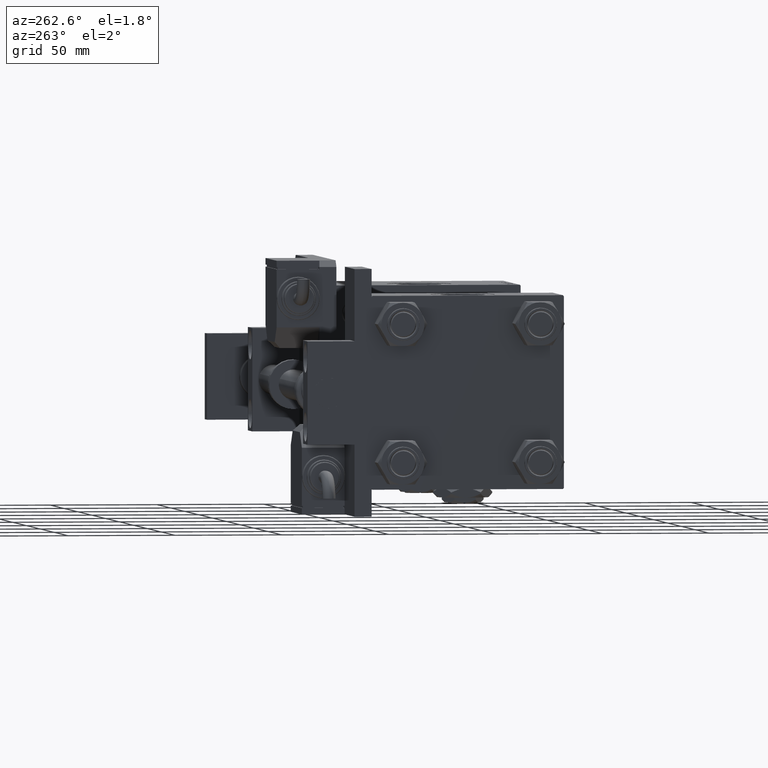
[diagram: clean part render]
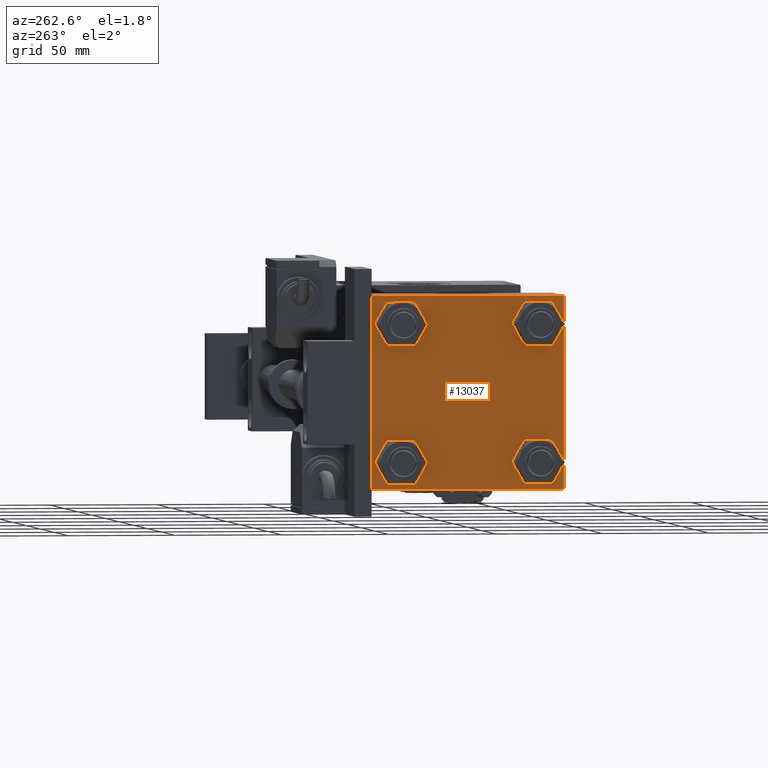
[diagram: same view with one face highlighted and labeled with its STEP entity id]
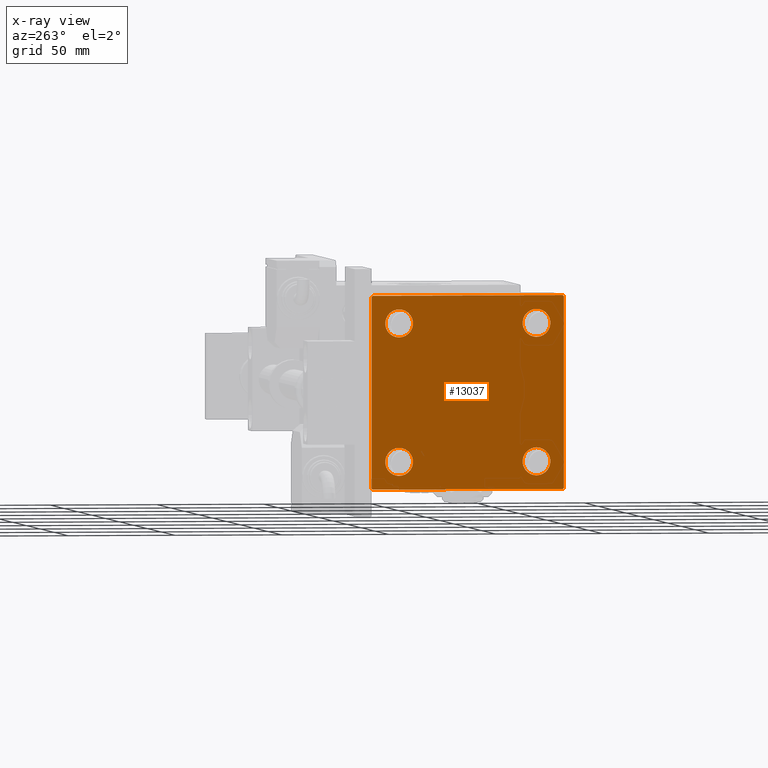
[diagram: x-ray of the same camera — body ghosted, the highlighted face saturated]
A machine part, auxiliary view. The second image highlights one B-rep face of the part: STEP entity #13037.
The next image is the same camera in x-ray: the body ghosted, the highlighted face saturated — about 0% of this face is hidden behind the body in this view.
In plain terms, the highlighted planar face has unit normal (-1, 0, 0).
Its self-contained STEP definition (entity closure, byte-faithful):
#770 = CARTESIAN_POINT ( 'NONE',  ( 0.000000000000000000, 32.14999999999999147, -32.14999999999999858 ) ) ;
#827 = VERTEX_POINT ( 'NONE', #3104 ) ;
#874 = DIRECTION ( 'NONE',  ( 0.000000000000000000, 0.000000000000000000, 1.000000000000000000 ) ) ;
#1553 = DIRECTION ( 'NONE',  ( 0.000000000000000000, 0.000000000000000000, 1.000000000000000000 ) ) ;
#1712 = CARTESIAN_POINT ( 'NONE',  ( 0.000000000000000000, 45.00000000000000000, -44.99999999999999289 ) ) ;
#1728 = CIRCLE ( 'NONE', #11109, 6.499999999999977796 ) ;
#1773 = DIRECTION ( 'NONE',  ( 1.000000000000000000, -0.000000000000000000, 0.000000000000000000 ) ) ;
#2805 = CARTESIAN_POINT ( 'NONE',  ( 0.000000000000000000, 45.00000000000000000, 44.49999999999999289 ) ) ;
#2929 = FACE_BOUND ( 'NONE', #13698, .T. ) ;
#3104 = CARTESIAN_POINT ( 'NONE',  ( 0.000000000000000000, 32.14999999999999147, -25.64999999999997726 ) ) ;
#3209 = CARTESIAN_POINT ( 'NONE',  ( 0.000000000000000000, -44.49999999999997158, 44.99999999999998579 ) ) ;
#3447 = EDGE_CURVE ( 'NONE', #42028, #19381, #28579, .T. ) ;
#3480 = CIRCLE ( 'NONE', #32568, 6.500000000000019540 ) ;
#3890 = ORIENTED_EDGE ( 'NONE', *, *, #6220, .F. ) ;
#3905 = DIRECTION ( 'NONE',  ( 0.000000000000000000, 0.000000000000000000, -1.000000000000000000 ) ) ;
#4324 = DIRECTION ( 'NONE',  ( 0.000000000000000000, 0.000000000000000000, -1.000000000000000000 ) ) ;
#4494 = ORIENTED_EDGE ( 'NONE', *, *, #11536, .T. ) ;
#4807 = LINE ( 'NONE', #13328, #6561 ) ;
#5023 = EDGE_CURVE ( 'NONE', #19381, #42028, #48304, .T. ) ;
#5510 = EDGE_CURVE ( 'NONE', #45424, #16648, #21513, .T. ) ;
#5886 = CARTESIAN_POINT ( 'NONE',  ( 0.000000000000000000, 44.74999999999936762, 44.75000000000061107 ) ) ;
#6039 = CARTESIAN_POINT ( 'NONE',  ( 0.000000000000000000, -44.49999999999994316, -45.00000000000000000 ) ) ;
#6220 = EDGE_CURVE ( 'NONE', #13718, #38865, #49158, .T. ) ;
#6375 = ORIENTED_EDGE ( 'NONE', *, *, #55957, .T. ) ;
#6561 = VECTOR ( 'NONE', #22416, 1000.000000000000114 ) ;
#6764 = VERTEX_POINT ( 'NONE', #50120 ) ;
#6824 = VERTEX_POINT ( 'NONE', #10210 ) ;
#6851 = ORIENTED_EDGE ( 'NONE', *, *, #3447, .T. ) ;
#6941 = CARTESIAN_POINT ( 'NONE',  ( 0.000000000000000000, 32.14999999999999147, 32.14999999999999858 ) ) ;
#7042 = DIRECTION ( 'NONE',  ( -1.000000000000000000, 0.000000000000000000, -0.000000000000000000 ) ) ;
#7421 = VECTOR ( 'NONE', #28393, 1000.000000000000000 ) ;
#8058 = CARTESIAN_POINT ( 'NONE',  ( 0.000000000000000000, 32.14999999999999147, -38.65000000000001990 ) ) ;
#8157 = DIRECTION ( 'NONE',  ( 0.000000000000000000, 0.000000000000000000, 1.000000000000000000 ) ) ;
#8202 = VERTEX_POINT ( 'NONE', #8058 ) ;
#8695 = EDGE_CURVE ( 'NONE', #827, #8202, #3480, .T. ) ;
#8965 = ORIENTED_EDGE ( 'NONE', *, *, #57461, .T. ) ;
#9675 = CARTESIAN_POINT ( 'NONE',  ( 0.000000000000000000, -32.14999999999997726, 32.15000000000000568 ) ) ;
#9925 = VECTOR ( 'NONE', #3905, 1000.000000000000000 ) ;
#10042 = DIRECTION ( 'NONE',  ( 1.000000000000000000, -0.000000000000000000, 0.000000000000000000 ) ) ;
#10210 = CARTESIAN_POINT ( 'NONE',  ( 0.000000000000000000, -32.14999999999997726, 38.64999999999999147 ) ) ;
#10450 = AXIS2_PLACEMENT_3D ( 'NONE', #770, #49468, #27163 ) ;
#10597 = VECTOR ( 'NONE', #44426, 1000.000000000000114 ) ;
#11097 = DIRECTION ( 'NONE',  ( 0.000000000000000000, -0.7071067811865672237, 0.7071067811865279218 ) ) ;
#11109 = AXIS2_PLACEMENT_3D ( 'NONE', #41766, #10042, #1553 ) ;
#11536 = EDGE_CURVE ( 'NONE', #6764, #35518, #45651, .T. ) ;
#11631 = EDGE_LOOP ( 'NONE', ( #29194, #6375 ) ) ;
#12317 = FACE_OUTER_BOUND ( 'NONE', #31764, .T. ) ;
#12990 = VERTEX_POINT ( 'NONE', #14969 ) ;
#13037 = ADVANCED_FACE ( 'NONE', ( #35184, #2929, #47537, #25236, #12317 ), #38746, .T. ) ;
#13328 = CARTESIAN_POINT ( 'NONE',  ( -0.000000000000000000, -44.74999999999999289, 44.74999999999999289 ) ) ;
#13604 = VECTOR ( 'NONE', #55181, 999.9999999999998863 ) ;
#13698 = EDGE_LOOP ( 'NONE', ( #4494, #19165 ) ) ;
#13718 = VERTEX_POINT ( 'NONE', #33903 ) ;
#13932 = ORIENTED_EDGE ( 'NONE', *, *, #8695, .T. ) ;
#14300 = ORIENTED_EDGE ( 'NONE', *, *, #20932, .T. ) ;
#14429 = VERTEX_POINT ( 'NONE', #2805 ) ;
#14524 = EDGE_CURVE ( 'NONE', #44388, #12990, #26245, .T. ) ;
#14595 = CARTESIAN_POINT ( 'NONE',  ( 0.000000000000000000, 32.14999999999999147, 38.65000000000001990 ) ) ;
#14969 = CARTESIAN_POINT ( 'NONE',  ( 0.000000000000000000, 44.50000000000000000, -44.99999999999999289 ) ) ;
#15477 = LINE ( 'NONE', #33390, #34249 ) ;
#16131 = CARTESIAN_POINT ( 'NONE',  ( 0.000000000000000000, 0.000000000000000000, 0.000000000000000000 ) ) ;
#16648 = VERTEX_POINT ( 'NONE', #46301 ) ;
#19165 = ORIENTED_EDGE ( 'NONE', *, *, #20720, .T. ) ;
#19381 = VERTEX_POINT ( 'NONE', #22289 ) ;
#19650 = EDGE_CURVE ( 'NONE', #14429, #44388, #34857, .T. ) ;
#20365 = AXIS2_PLACEMENT_3D ( 'NONE', #49218, #44526, #8157 ) ;
#20720 = EDGE_CURVE ( 'NONE', #35518, #6764, #56236, .T. ) ;
#20822 = DIRECTION ( 'NONE',  ( -0.000000000000000000, 0.000000000000000000, 1.000000000000000000 ) ) ;
#20932 = EDGE_CURVE ( 'NONE', #45424, #38865, #4807, .T. ) ;
#21382 = ORIENTED_EDGE ( 'NONE', *, *, #14524, .T. ) ;
#21513 = LINE ( 'NONE', #48509, #9925 ) ;
#22283 = AXIS2_PLACEMENT_3D ( 'NONE', #16131, #7042, #20822 ) ;
#22289 = CARTESIAN_POINT ( 'NONE',  ( 0.000000000000000000, 32.14999999999999147, 25.64999999999997726 ) ) ;
#22416 = DIRECTION ( 'NONE',  ( -0.000000000000000000, 0.7071067811865474617, 0.7071067811865474617 ) ) ;
#22561 = EDGE_LOOP ( 'NONE', ( #13932, #50823 ) ) ;
#23904 = ORIENTED_EDGE ( 'NONE', *, *, #5510, .F. ) ;
#23937 = EDGE_CURVE ( 'NONE', #8202, #827, #35744, .T. ) ;
#25236 = FACE_BOUND ( 'NONE', #41944, .T. ) ;
#25653 = CARTESIAN_POINT ( 'NONE',  ( 0.000000000000000000, 45.00000000000000000, -44.49999999999996447 ) ) ;
#25808 = AXIS2_PLACEMENT_3D ( 'NONE', #6941, #47723, #38359 ) ;
#26245 = LINE ( 'NONE', #36204, #10597 ) ;
#26389 = DIRECTION ( 'NONE',  ( 0.000000000000000000, 0.000000000000000000, 1.000000000000000000 ) ) ;
#27163 = DIRECTION ( 'NONE',  ( 0.000000000000000000, 0.000000000000000000, 1.000000000000000000 ) ) ;
#27509 = LINE ( 'NONE', #1712, #7421 ) ;
#28393 = DIRECTION ( 'NONE',  ( 0.000000000000000000, -1.000000000000000000, -7.709882115452476934E-17 ) ) ;
#28579 = CIRCLE ( 'NONE', #33282, 6.500000000000019540 ) ;
#29194 = ORIENTED_EDGE ( 'NONE', *, *, #55655, .T. ) ;
#30880 = DIRECTION ( 'NONE',  ( 1.000000000000000000, -0.000000000000000000, 0.000000000000000000 ) ) ;
#31227 = CARTESIAN_POINT ( 'NONE',  ( 0.000000000000000000, -45.00000000000000000, 44.49999999999998579 ) ) ;
#31389 = CARTESIAN_POINT ( 'NONE',  ( 0.000000000000000000, 32.14999999999999147, 32.14999999999999858 ) ) ;
#31553 = DIRECTION ( 'NONE',  ( 0.000000000000000000, -1.000000000000000000, -2.312964634635742957E-16 ) ) ;
#31740 = CIRCLE ( 'NONE', #55157, 6.499999999999977796 ) ;
#31764 = EDGE_LOOP ( 'NONE', ( #53449, #21382, #8965, #43890, #23904, #14300, #3890, #57902 ) ) ;
#32568 = AXIS2_PLACEMENT_3D ( 'NONE', #45217, #30880, #57863 ) ;
#33282 = AXIS2_PLACEMENT_3D ( 'NONE', #31389, #49859, #874 ) ;
#33390 = CARTESIAN_POINT ( 'NONE',  ( 0.000000000000000000, -44.74999999999873523, -44.75000000000122924 ) ) ;
#33903 = CARTESIAN_POINT ( 'NONE',  ( 0.000000000000000000, 44.49999999999997158, 45.00000000000000711 ) ) ;
#34249 = VECTOR ( 'NONE', #11097, 1000.000000000000000 ) ;
#34617 = CARTESIAN_POINT ( 'NONE',  ( 0.000000000000000000, -32.14999999999997726, -38.64999999999998437 ) ) ;
#34857 = LINE ( 'NONE', #39852, #46812 ) ;
#34908 = CARTESIAN_POINT ( 'NONE',  ( 0.000000000000000000, -32.14999999999997726, -32.15000000000000568 ) ) ;
#35184 = FACE_BOUND ( 'NONE', #11631, .T. ) ;
#35518 = VERTEX_POINT ( 'NONE', #34617 ) ;
#35744 = CIRCLE ( 'NONE', #10450, 6.500000000000019540 ) ;
#36185 = VECTOR ( 'NONE', #31553, 1000.000000000000000 ) ;
#36204 = CARTESIAN_POINT ( 'NONE',  ( 0.000000000000000000, 44.74999999999999289, -44.74999999999999289 ) ) ;
#37865 = CARTESIAN_POINT ( 'NONE',  ( 0.000000000000000000, -32.14999999999997726, 25.65000000000002700 ) ) ;
#38359 = DIRECTION ( 'NONE',  ( 0.000000000000000000, 0.000000000000000000, 1.000000000000000000 ) ) ;
#38746 = PLANE ( 'NONE',  #22283 ) ;
#38865 = VERTEX_POINT ( 'NONE', #3209 ) ;
#39189 = EDGE_CURVE ( 'NONE', #45191, #16648, #15477, .T. ) ;
#39852 = CARTESIAN_POINT ( 'NONE',  ( 0.000000000000000000, 45.00000000000000000, 45.00000000000000711 ) ) ;
#39919 = EDGE_CURVE ( 'NONE', #13718, #14429, #43362, .T. ) ;
#41766 = CARTESIAN_POINT ( 'NONE',  ( 0.000000000000000000, -32.14999999999997726, 32.15000000000000568 ) ) ;
#41944 = EDGE_LOOP ( 'NONE', ( #6851, #52380 ) ) ;
#42028 = VERTEX_POINT ( 'NONE', #14595 ) ;
#43362 = LINE ( 'NONE', #5886, #13604 ) ;
#43423 = DIRECTION ( 'NONE',  ( 1.000000000000000000, -0.000000000000000000, 0.000000000000000000 ) ) ;
#43890 = ORIENTED_EDGE ( 'NONE', *, *, #39189, .T. ) ;
#44388 = VERTEX_POINT ( 'NONE', #25653 ) ;
#44426 = DIRECTION ( 'NONE',  ( -0.000000000000000000, -0.7071067811865474617, -0.7071067811865474617 ) ) ;
#44526 = DIRECTION ( 'NONE',  ( 1.000000000000000000, -0.000000000000000000, 0.000000000000000000 ) ) ;
#45191 = VERTEX_POINT ( 'NONE', #6039 ) ;
#45217 = CARTESIAN_POINT ( 'NONE',  ( 0.000000000000000000, 32.14999999999999147, -32.14999999999999858 ) ) ;
#45424 = VERTEX_POINT ( 'NONE', #31227 ) ;
#45651 = CIRCLE ( 'NONE', #20365, 6.499999999999977796 ) ;
#46301 = CARTESIAN_POINT ( 'NONE',  ( 0.000000000000000000, -45.00000000000000000, -44.49999999999997158 ) ) ;
#46812 = VECTOR ( 'NONE', #4324, 1000.000000000000000 ) ;
#47537 = FACE_BOUND ( 'NONE', #22561, .T. ) ;
#47723 = DIRECTION ( 'NONE',  ( 1.000000000000000000, -0.000000000000000000, 0.000000000000000000 ) ) ;
#48304 = CIRCLE ( 'NONE', #25808, 6.500000000000019540 ) ;
#48509 = CARTESIAN_POINT ( 'NONE',  ( 0.000000000000000000, -45.00000000000000000, 44.99999999999998579 ) ) ;
#48876 = CARTESIAN_POINT ( 'NONE',  ( 0.000000000000000000, 45.00000000000000000, 45.00000000000000711 ) ) ;
#49158 = LINE ( 'NONE', #48876, #36185 ) ;
#49218 = CARTESIAN_POINT ( 'NONE',  ( 0.000000000000000000, -32.14999999999997726, -32.15000000000000568 ) ) ;
#49468 = DIRECTION ( 'NONE',  ( 1.000000000000000000, -0.000000000000000000, 0.000000000000000000 ) ) ;
#49859 = DIRECTION ( 'NONE',  ( 1.000000000000000000, -0.000000000000000000, 0.000000000000000000 ) ) ;
#50120 = CARTESIAN_POINT ( 'NONE',  ( 0.000000000000000000, -32.14999999999997726, -25.65000000000002700 ) ) ;
#50823 = ORIENTED_EDGE ( 'NONE', *, *, #23937, .T. ) ;
#52380 = ORIENTED_EDGE ( 'NONE', *, *, #5023, .T. ) ;
#53449 = ORIENTED_EDGE ( 'NONE', *, *, #19650, .T. ) ;
#54575 = DIRECTION ( 'NONE',  ( 0.000000000000000000, 0.000000000000000000, 1.000000000000000000 ) ) ;
#55157 = AXIS2_PLACEMENT_3D ( 'NONE', #9675, #1773, #54575 ) ;
#55181 = DIRECTION ( 'NONE',  ( 0.000000000000000000, 0.7071067811865574537, -0.7071067811865376918 ) ) ;
#55655 = EDGE_CURVE ( 'NONE', #6824, #57251, #1728, .T. ) ;
#55957 = EDGE_CURVE ( 'NONE', #57251, #6824, #31740, .T. ) ;
#56236 = CIRCLE ( 'NONE', #57154, 6.499999999999977796 ) ;
#57154 = AXIS2_PLACEMENT_3D ( 'NONE', #34908, #43423, #26389 ) ;
#57251 = VERTEX_POINT ( 'NONE', #37865 ) ;
#57461 = EDGE_CURVE ( 'NONE', #12990, #45191, #27509, .T. ) ;
#57863 = DIRECTION ( 'NONE',  ( 0.000000000000000000, 0.000000000000000000, 1.000000000000000000 ) ) ;
#57902 = ORIENTED_EDGE ( 'NONE', *, *, #39919, .T. ) ;